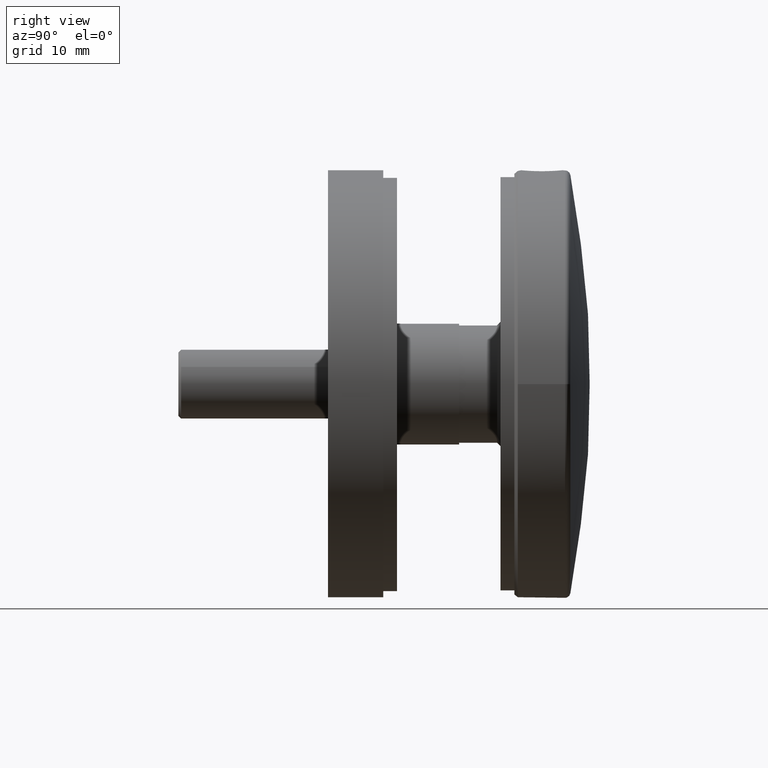
[diagram: clean part render]
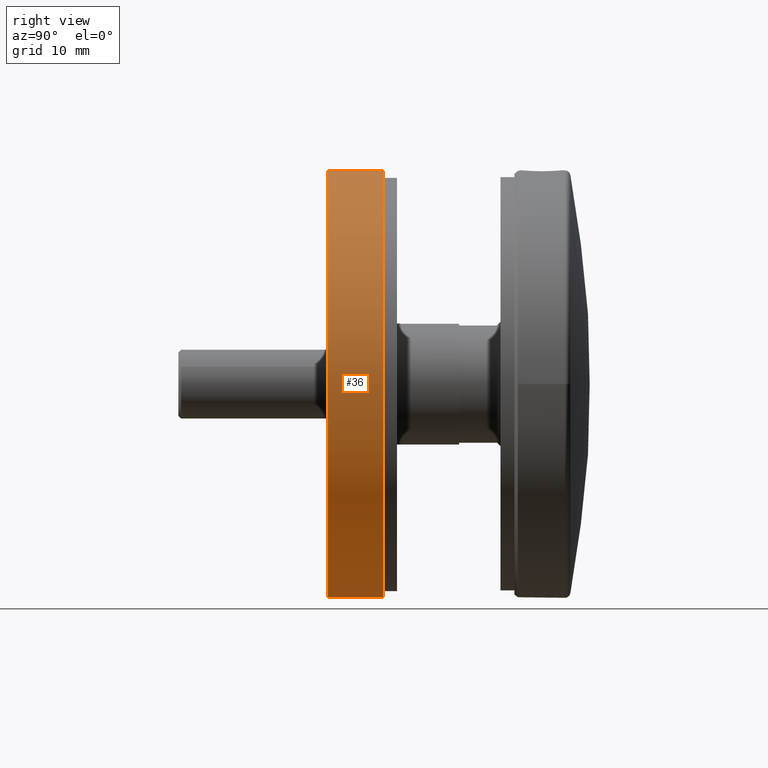
[diagram: same view with one face highlighted and labeled with its STEP entity id]
A machine part, right view. The second image highlights one B-rep face of the part: STEP entity #36.
In plain terms, the highlighted cylindrical surface (bore or boss wall) has radius 31 mm, axis along (0, 1, 0).
Its self-contained STEP definition (entity closure, byte-faithful):
#36 = ADVANCED_FACE ( 'NONE', ( #1586, #17044 ), #8232, .T. ) ;
#587 = CIRCLE ( 'NONE', #11259, 31.00000000000000000 ) ;
#1586 = FACE_OUTER_BOUND ( 'NONE', #9924, .T. ) ;
#3292 = CARTESIAN_POINT ( 'NONE',  ( 0.000000000000000000, 7.999999999999996447, 0.000000000000000000 ) ) ;
#4125 = AXIS2_PLACEMENT_3D ( 'NONE', #6866, #15269, #10947 ) ;
#5176 = VERTEX_POINT ( 'NONE', #12403 ) ;
#6866 = CARTESIAN_POINT ( 'NONE',  ( 0.000000000000000000, -3.469446951953614189E-15, 0.000000000000000000 ) ) ;
#7468 = CIRCLE ( 'NONE', #4125, 31.00000000000000000 ) ;
#8109 = AXIS2_PLACEMENT_3D ( 'NONE', #3292, #13163, #14714 ) ;
#8232 = CYLINDRICAL_SURFACE ( 'NONE', #8109, 31.00000000000000000 ) ;
#8440 = EDGE_LOOP ( 'NONE', ( #9243 ) ) ;
#9243 = ORIENTED_EDGE ( 'NONE', *, *, #13256, .F. ) ;
#9924 = EDGE_LOOP ( 'NONE', ( #12023 ) ) ;
#10739 = VERTEX_POINT ( 'NONE', #12643 ) ;
#10947 = DIRECTION ( 'NONE',  ( 0.000000000000000000, 0.000000000000000000, 1.000000000000000000 ) ) ;
#11036 = EDGE_CURVE ( 'NONE', #10739, #10739, #7468, .T. ) ;
#11259 = AXIS2_PLACEMENT_3D ( 'NONE', #16133, #17561, #11918 ) ;
#11918 = DIRECTION ( 'NONE',  ( 0.000000000000000000, 0.000000000000000000, 1.000000000000000000 ) ) ;
#12023 = ORIENTED_EDGE ( 'NONE', *, *, #11036, .T. ) ;
#12403 = CARTESIAN_POINT ( 'NONE',  ( 0.000000000000000000, 7.999999999999996447, 31.00000000000000000 ) ) ;
#12643 = CARTESIAN_POINT ( 'NONE',  ( 0.000000000000000000, -3.469446951953614189E-15, 31.00000000000000000 ) ) ;
#13163 = DIRECTION ( 'NONE',  ( -0.000000000000000000, 1.000000000000000000, -0.000000000000000000 ) ) ;
#13256 = EDGE_CURVE ( 'NONE', #5176, #5176, #587, .T. ) ;
#14714 = DIRECTION ( 'NONE',  ( 0.000000000000000000, 0.000000000000000000, 1.000000000000000000 ) ) ;
#15269 = DIRECTION ( 'NONE',  ( -0.000000000000000000, 1.000000000000000000, -0.000000000000000000 ) ) ;
#16133 = CARTESIAN_POINT ( 'NONE',  ( 0.000000000000000000, 7.999999999999996447, 0.000000000000000000 ) ) ;
#17044 = FACE_OUTER_BOUND ( 'NONE', #8440, .T. ) ;
#17561 = DIRECTION ( 'NONE',  ( -0.000000000000000000, 1.000000000000000000, -0.000000000000000000 ) ) ;